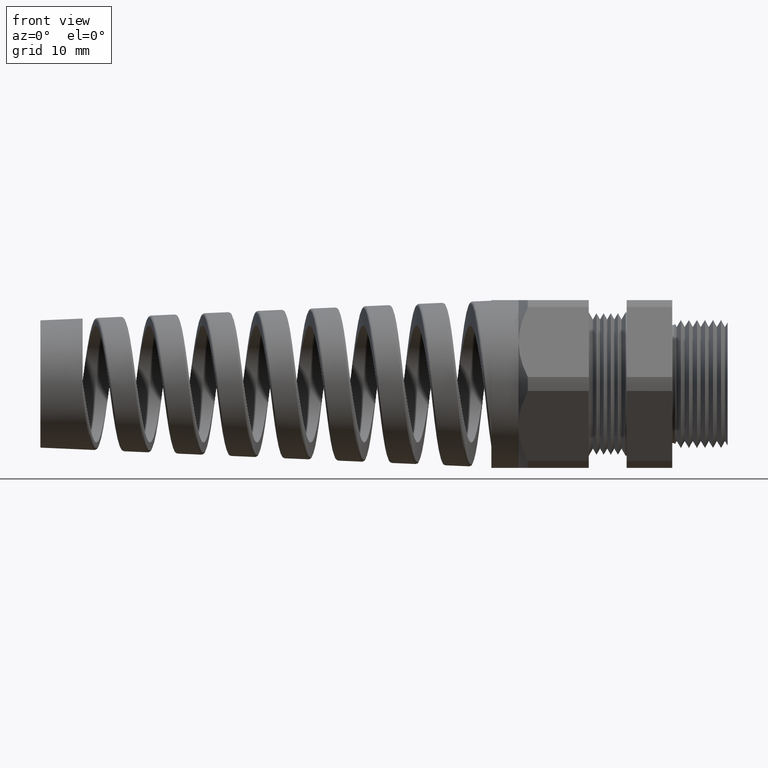
[diagram: clean part render]
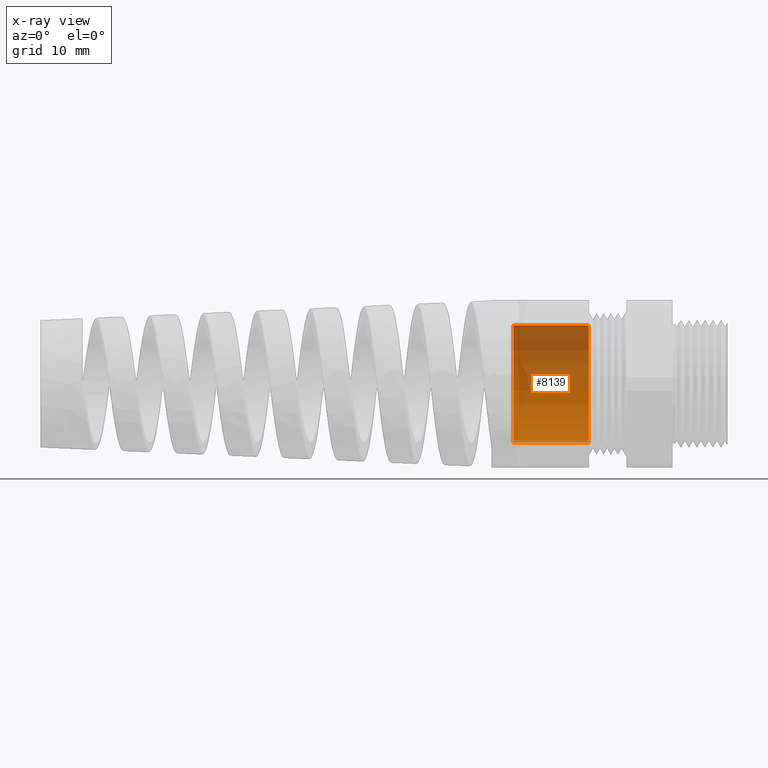
[diagram: x-ray — body ghosted, one internal face saturated and labeled with its STEP entity id]
A machine part, front view, then the same camera in x-ray: the body is ghosted and one INTERNAL B-rep face — a face not visible from any outside direction — is saturated and labeled: STEP entity #8139.
In plain terms, the highlighted cylindrical surface (partial cylindrical patch) has radius 8.3439 mm, axis along (1, 0, 0).
Its self-contained STEP definition (entity closure, byte-faithful):
#2630 = DIRECTION ( 'NONE',  ( 0.0000000000000000000, 0.0000000000000000000, -1.000000000000000000 ) ) ;
#2631 = DIRECTION ( 'NONE',  ( 1.000000000000000000, 0.0000000000000000000, 0.0000000000000000000 ) ) ;
#2632 = CARTESIAN_POINT ( 'NONE',  ( -0.7775590551181100800, 0.0000000000000000000, 0.0000000000000000000 ) ) ;
#2633 = AXIS2_PLACEMENT_3D ( 'NONE', #2632, #2631, #2630 ) ;
#2634 = CIRCLE ( 'NONE', #2633, 0.3284999999999999000 ) ;
#2635 = CARTESIAN_POINT ( 'NONE',  ( -0.7775590551181100800, 4.022964735199054400E-017, 0.3284999999999999000 ) ) ;
#2636 = DIRECTION ( 'NONE',  ( 1.000000000000000000, 0.0000000000000000000, 0.0000000000000000000 ) ) ;
#2637 = VECTOR ( 'NONE', #2636, 39.37007874015748100 ) ;
#2638 = CARTESIAN_POINT ( 'NONE',  ( 0.0000000000000000000, 4.022964735199054400E-017, 0.3284999999999999000 ) ) ;
#2639 = LINE ( 'NONE', #2638, #2637 ) ;
#2640 = DIRECTION ( 'NONE',  ( 0.0000000000000000000, 0.0000000000000000000, -1.000000000000000000 ) ) ;
#2641 = DIRECTION ( 'NONE',  ( 1.000000000000000000, 0.0000000000000000000, 0.0000000000000000000 ) ) ;
#2642 = CARTESIAN_POINT ( 'NONE',  ( 0.0000000000000000000, 0.0000000000000000000, 0.0000000000000000000 ) ) ;
#2643 = AXIS2_PLACEMENT_3D ( 'NONE', #2642, #2641, #2640 ) ;
#2644 = CYLINDRICAL_SURFACE ( 'NONE', #2643, 0.3284999999999999000 ) ;
#2645 = FACE_OUTER_BOUND ( 'NONE', #8140, .T. ) ;
#2690 = CARTESIAN_POINT ( 'NONE',  ( -0.7775590551181100800, 0.0000000000000000000, -0.3284999999999999000 ) ) ;
#2730 = CARTESIAN_POINT ( 'NONE',  ( -1.200000000000000000, 4.022964735199054400E-017, 0.3284999999999999000 ) ) ;
#2783 = CARTESIAN_POINT ( 'NONE',  ( -1.200000000000000000, 0.0000000000000000000, -0.3284999999999999000 ) ) ;
#2784 = DIRECTION ( 'NONE',  ( 0.0000000000000000000, 0.0000000000000000000, -1.000000000000000000 ) ) ;
#2785 = DIRECTION ( 'NONE',  ( 1.000000000000000000, 0.0000000000000000000, 0.0000000000000000000 ) ) ;
#2786 = CARTESIAN_POINT ( 'NONE',  ( -1.200000000000000000, 0.0000000000000000000, 0.0000000000000000000 ) ) ;
#2787 = AXIS2_PLACEMENT_3D ( 'NONE', #2786, #2785, #2784 ) ;
#2788 = CIRCLE ( 'NONE', #2787, 0.3284999999999999000 ) ;
#2801 = DIRECTION ( 'NONE',  ( 1.000000000000000000, 0.0000000000000000000, 0.0000000000000000000 ) ) ;
#2802 = VECTOR ( 'NONE', #2801, 39.37007874015748100 ) ;
#2803 = CARTESIAN_POINT ( 'NONE',  ( 0.0000000000000000000, 0.0000000000000000000, -0.3284999999999999000 ) ) ;
#2808 = LINE ( 'NONE', #2803, #2802 ) ;
#8139 = ADVANCED_FACE ( 'NONE', ( #2645 ), #2644, .T. ) ;
#8140 = EDGE_LOOP ( 'NONE', ( #8141, #8142, #8145, #8248 ) ) ;
#8141 = ORIENTED_EDGE ( 'NONE', *, *, #8218, .T. ) ;
#8142 = ORIENTED_EDGE ( 'NONE', *, *, #8143, .T. ) ;
#8143 = EDGE_CURVE ( 'NONE', #8216, #8144, #2639, .T. ) ;
#8144 = VERTEX_POINT ( 'NONE', #2635 ) ;
#8145 = ORIENTED_EDGE ( 'NONE', *, *, #8146, .F. ) ;
#8146 = EDGE_CURVE ( 'NONE', #8147, #8144, #2634, .T. ) ;
#8147 = VERTEX_POINT ( 'NONE', #2690 ) ;
#8216 = VERTEX_POINT ( 'NONE', #2730 ) ;
#8218 = EDGE_CURVE ( 'NONE', #8219, #8216, #2788, .T. ) ;
#8219 = VERTEX_POINT ( 'NONE', #2783 ) ;
#8248 = ORIENTED_EDGE ( 'NONE', *, *, #8249, .F. ) ;
#8249 = EDGE_CURVE ( 'NONE', #8219, #8147, #2808, .T. ) ;